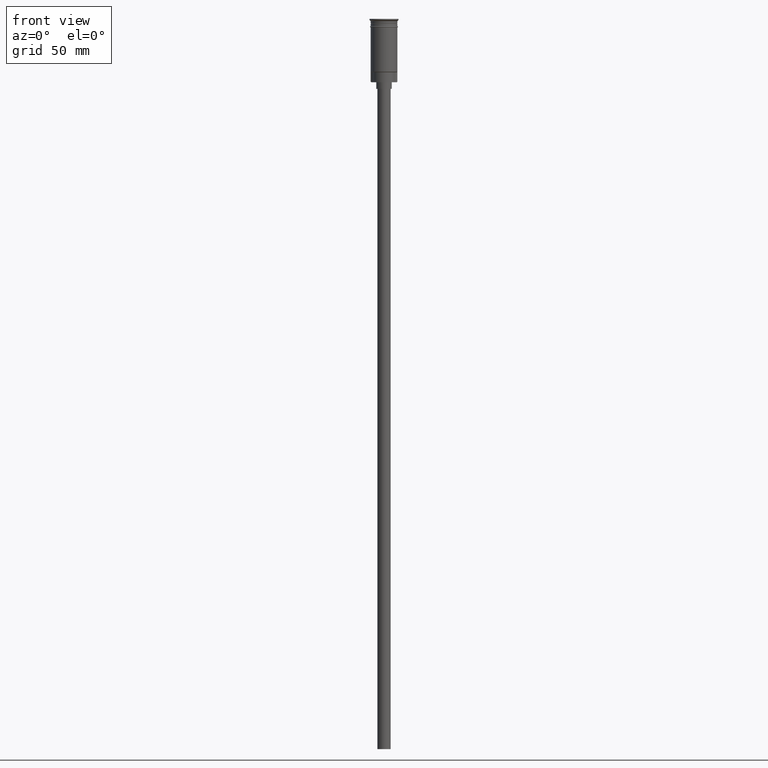
[diagram: clean part render]
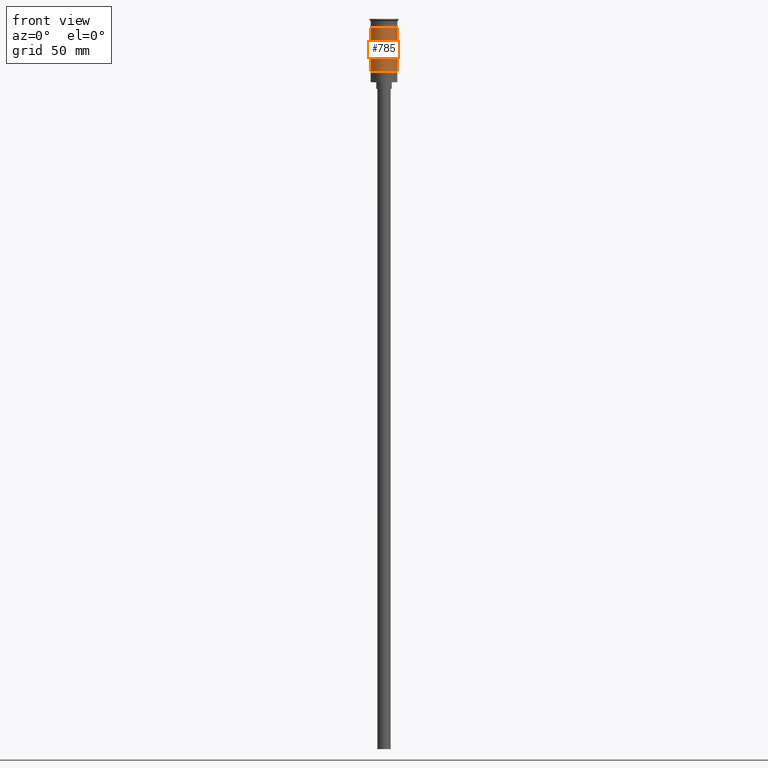
[diagram: same view with one face highlighted and labeled with its STEP entity id]
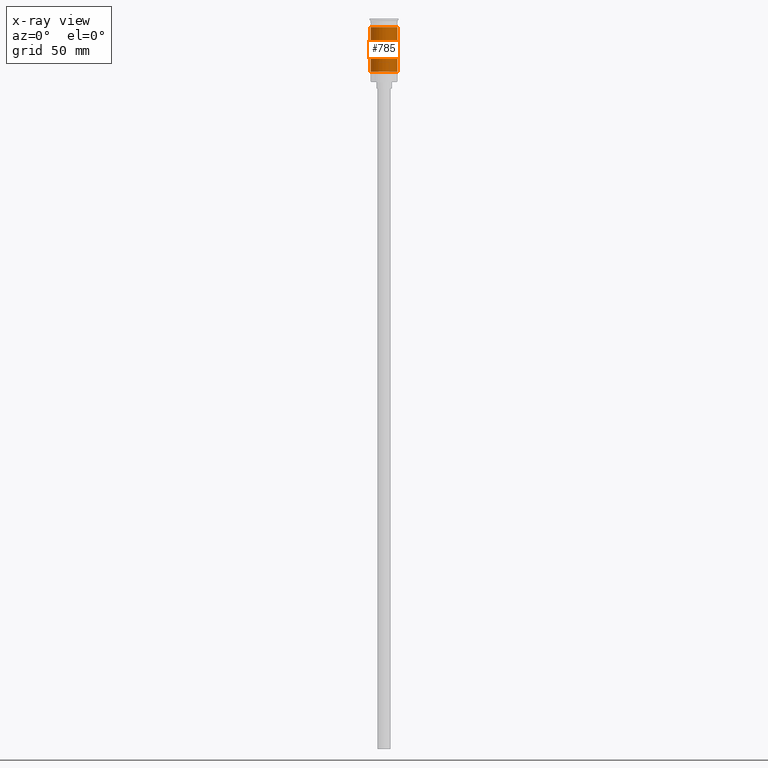
[diagram: x-ray of the same camera — body ghosted, the highlighted face saturated]
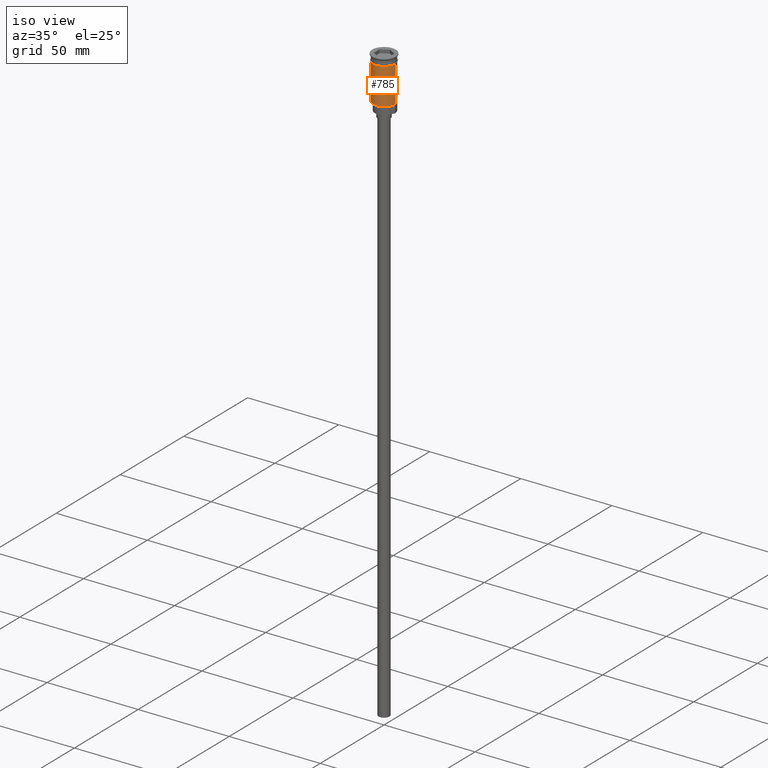
[diagram: same view with one face highlighted and labeled with its STEP entity id]
A machine part, front view. The second image highlights one B-rep face of the part: STEP entity #785.
The next image is the same camera in x-ray: the body ghosted, the highlighted face saturated — about 0% of this face is hidden behind the body in this view.
A second angle (iso view) of the same face is appended — the face is thin or edge-on in the first view.
In plain terms, the highlighted cylindrical surface (edge-blend (fillet) strip) has radius 6 mm, axis along (-0, -0, 1).
Its self-contained STEP definition (entity closure, byte-faithful):
#57 = DIRECTION ( 'NONE',  ( -0.000000000000000000, -0.000000000000000000, 1.000000000000000000 ) ) ;
#61 = LINE ( 'NONE', #1437, #532 ) ;
#66 = VERTEX_POINT ( 'NONE', #1083 ) ;
#156 = CARTESIAN_POINT ( 'NONE',  ( 0.000000000000000000, 0.000000000000000000, 0.000000000000000000 ) ) ;
#157 = AXIS2_PLACEMENT_3D ( 'NONE', #1384, #401, #632 ) ;
#236 = EDGE_CURVE ( 'NONE', #66, #545, #287, .T. ) ;
#287 = CIRCLE ( 'NONE', #157, 5.999999999999997335 ) ;
#401 = DIRECTION ( 'NONE',  ( -0.000000000000000000, -0.000000000000000000, 1.000000000000000000 ) ) ;
#455 = VECTOR ( 'NONE', #1243, 1000.000000000000000 ) ;
#497 = EDGE_LOOP ( 'NONE', ( #1283, #1169, #815, #801 ) ) ;
#532 = VECTOR ( 'NONE', #835, 1000.000000000000000 ) ;
#545 = VERTEX_POINT ( 'NONE', #1016 ) ;
#587 = AXIS2_PLACEMENT_3D ( 'NONE', #938, #57, #1279 ) ;
#632 = DIRECTION ( 'NONE',  ( -1.000000000000000000, 0.000000000000000000, 0.000000000000000000 ) ) ;
#676 = EDGE_CURVE ( 'NONE', #66, #1035, #61, .T. ) ;
#734 = CARTESIAN_POINT ( 'NONE',  ( -6.000000000000000000, 7.347880794884119736E-16, -3.799999999999998490 ) ) ;
#759 = CARTESIAN_POINT ( 'NONE',  ( 5.999999999999997335, 0.000000000000000000, 0.000000000000000000 ) ) ;
#785 = ADVANCED_FACE ( 'NONE', ( #1264 ), #1269, .T. ) ;
#801 = ORIENTED_EDGE ( 'NONE', *, *, #914, .F. ) ;
#815 = ORIENTED_EDGE ( 'NONE', *, *, #1275, .T. ) ;
#835 = DIRECTION ( 'NONE',  ( -0.000000000000000000, -0.000000000000000000, 1.000000000000000000 ) ) ;
#914 = EDGE_CURVE ( 'NONE', #1035, #1150, #971, .T. ) ;
#928 = CARTESIAN_POINT ( 'NONE',  ( 6.000000000000000000, 0.000000000000000000, -3.799999999999998490 ) ) ;
#938 = CARTESIAN_POINT ( 'NONE',  ( 0.000000000000000000, 0.000000000000000000, -3.799999999999998490 ) ) ;
#971 = CIRCLE ( 'NONE', #587, 6.000000000000000000 ) ;
#1016 = CARTESIAN_POINT ( 'NONE',  ( 5.999999999999997335, 7.347880794884115792E-16, -23.79999999999995453 ) ) ;
#1035 = VERTEX_POINT ( 'NONE', #734 ) ;
#1083 = CARTESIAN_POINT ( 'NONE',  ( -5.999999999999994671, 0.000000000000000000, -23.79999999999995453 ) ) ;
#1150 = VERTEX_POINT ( 'NONE', #928 ) ;
#1169 = ORIENTED_EDGE ( 'NONE', *, *, #236, .T. ) ;
#1243 = DIRECTION ( 'NONE',  ( -0.000000000000000000, -0.000000000000000000, 1.000000000000000000 ) ) ;
#1258 = DIRECTION ( 'NONE',  ( -0.000000000000000000, -0.000000000000000000, 1.000000000000000000 ) ) ;
#1264 = FACE_OUTER_BOUND ( 'NONE', #497, .T. ) ;
#1269 = CYLINDRICAL_SURFACE ( 'NONE', #1272, 5.999999999999997335 ) ;
#1272 = AXIS2_PLACEMENT_3D ( 'NONE', #156, #1258, #1527 ) ;
#1275 = EDGE_CURVE ( 'NONE', #545, #1150, #1362, .T. ) ;
#1279 = DIRECTION ( 'NONE',  ( 1.000000000000000000, 0.000000000000000000, 0.000000000000000000 ) ) ;
#1283 = ORIENTED_EDGE ( 'NONE', *, *, #676, .F. ) ;
#1362 = LINE ( 'NONE', #759, #455 ) ;
#1384 = CARTESIAN_POINT ( 'NONE',  ( 0.000000000000000000, 0.000000000000000000, -23.79999999999995453 ) ) ;
#1437 = CARTESIAN_POINT ( 'NONE',  ( -5.999999999999997335, 7.347880794884116778E-16, 0.000000000000000000 ) ) ;
#1527 = DIRECTION ( 'NONE',  ( 1.000000000000000000, 0.000000000000000000, 0.000000000000000000 ) ) ;